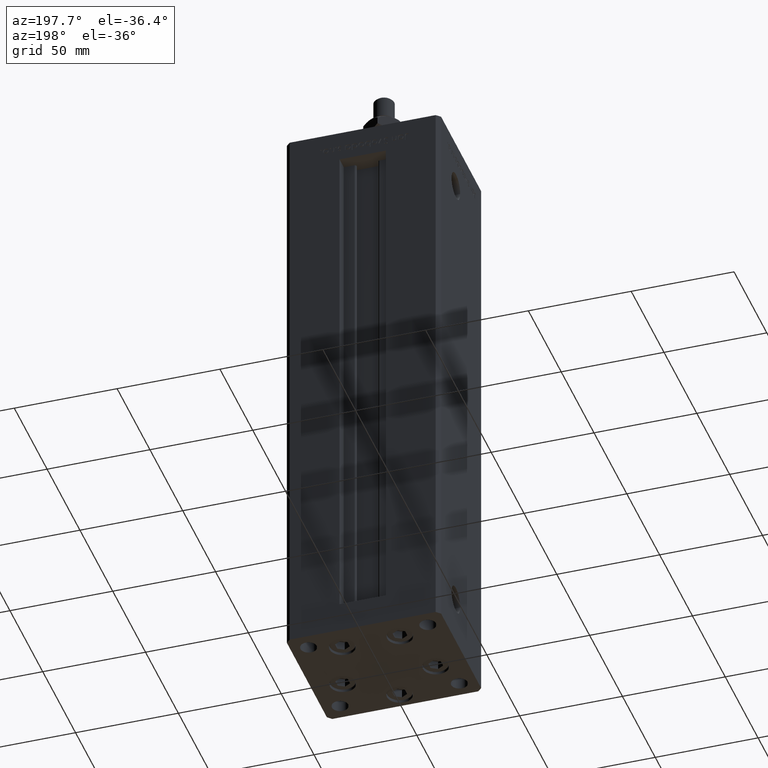
[diagram: clean part render]
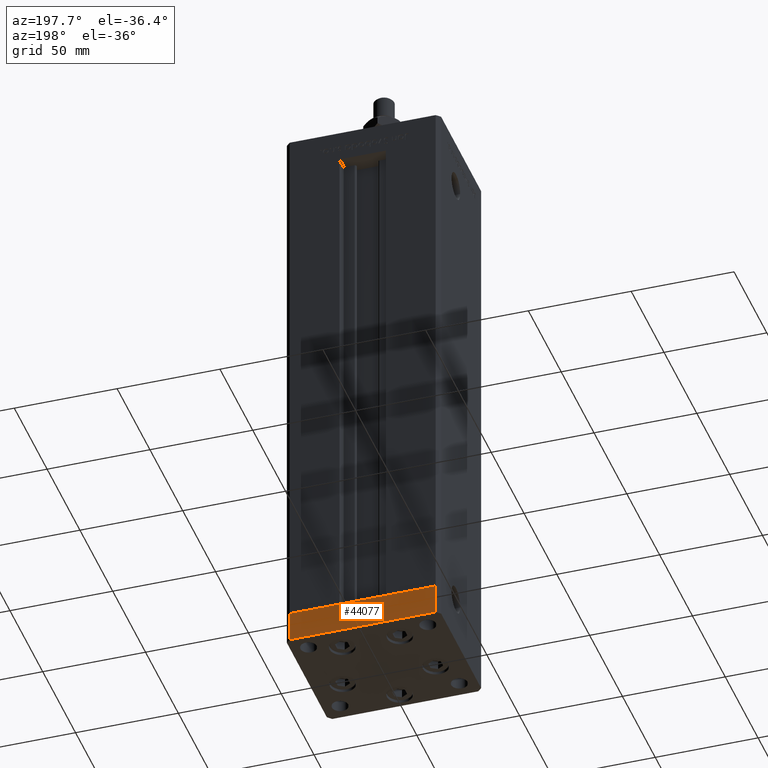
[diagram: same view with one face highlighted and labeled with its STEP entity id]
A machine part, auxiliary view. The second image highlights one B-rep face of the part: STEP entity #44077.
In plain terms, the highlighted planar face has unit normal (0, 1, 0).
Its self-contained STEP definition (entity closure, byte-faithful):
#1068 = VECTOR ( 'NONE', #1666, 1000.000000000000000 ) ;
#1666 = DIRECTION ( 'NONE',  ( 0.000000000000000000, 0.000000000000000000, 1.000000000000000000 ) ) ;
#2116 = CARTESIAN_POINT ( 'NONE',  ( -35.50000000000002842, 32.49999999999999289, 0.000000000000000000 ) ) ;
#5877 = VECTOR ( 'NONE', #32438, 1000.000000000000000 ) ;
#8770 = DIRECTION ( 'NONE',  ( -1.000000000000000000, -1.954618001100629052E-16, 0.000000000000000000 ) ) ;
#14731 = DIRECTION ( 'NONE',  ( -1.000000000000000000, -1.954618001100629052E-16, 0.000000000000000000 ) ) ;
#17048 = VERTEX_POINT ( 'NONE', #46578 ) ;
#18239 = CARTESIAN_POINT ( 'NONE',  ( -35.50000000000002842, 32.49999999999999289, -15.00000000000000000 ) ) ;
#20235 = ORIENTED_EDGE ( 'NONE', *, *, #34404, .T. ) ;
#20716 = CARTESIAN_POINT ( 'NONE',  ( 35.49999999999992184, 32.50000000000000711, -15.00000000000000000 ) ) ;
#21206 = CARTESIAN_POINT ( 'NONE',  ( 35.49999999999992184, 32.50000000000000711, -15.00000000000000000 ) ) ;
#21416 = EDGE_CURVE ( 'NONE', #17048, #25469, #49011, .T. ) ;
#21546 = ORIENTED_EDGE ( 'NONE', *, *, #35078, .F. ) ;
#22232 = VECTOR ( 'NONE', #8770, 1000.000000000000000 ) ;
#23572 = ORIENTED_EDGE ( 'NONE', *, *, #47829, .F. ) ;
#24537 = DIRECTION ( 'NONE',  ( 0.000000000000000000, 0.000000000000000000, 1.000000000000000000 ) ) ;
#25469 = VERTEX_POINT ( 'NONE', #28532 ) ;
#27491 = PLANE ( 'NONE',  #28163 ) ;
#28163 = AXIS2_PLACEMENT_3D ( 'NONE', #38927, #52227, #14731 ) ;
#28532 = CARTESIAN_POINT ( 'NONE',  ( -35.50000000000002842, 32.49999999999999289, -15.00000000000000000 ) ) ;
#29133 = LINE ( 'NONE', #20716, #34838 ) ;
#29415 = CARTESIAN_POINT ( 'NONE',  ( 35.49999999999992184, 32.50000000000000711, 0.000000000000000000 ) ) ;
#32438 = DIRECTION ( 'NONE',  ( -1.000000000000000000, -1.954618001100629052E-16, 0.000000000000000000 ) ) ;
#33902 = EDGE_LOOP ( 'NONE', ( #23572, #21546, #45606, #20235 ) ) ;
#34404 = EDGE_CURVE ( 'NONE', #25469, #50726, #43255, .T. ) ;
#34838 = VECTOR ( 'NONE', #24537, 1000.000000000000000 ) ;
#35078 = EDGE_CURVE ( 'NONE', #17048, #51308, #29133, .T. ) ;
#38927 = CARTESIAN_POINT ( 'NONE',  ( 35.49999999999992184, 32.50000000000000711, -15.00000000000000000 ) ) ;
#43255 = LINE ( 'NONE', #18239, #1068 ) ;
#44077 = ADVANCED_FACE ( 'NONE', ( #47879 ), #27491, .T. ) ;
#45606 = ORIENTED_EDGE ( 'NONE', *, *, #21416, .T. ) ;
#46578 = CARTESIAN_POINT ( 'NONE',  ( 35.49999999999992184, 32.50000000000000711, -15.00000000000000000 ) ) ;
#47101 = CARTESIAN_POINT ( 'NONE',  ( 35.49999999999992184, 32.50000000000000711, 0.000000000000000000 ) ) ;
#47829 = EDGE_CURVE ( 'NONE', #51308, #50726, #53604, .T. ) ;
#47879 = FACE_OUTER_BOUND ( 'NONE', #33902, .T. ) ;
#49011 = LINE ( 'NONE', #21206, #5877 ) ;
#50726 = VERTEX_POINT ( 'NONE', #2116 ) ;
#51308 = VERTEX_POINT ( 'NONE', #47101 ) ;
#52227 = DIRECTION ( 'NONE',  ( -1.954618001100629052E-16, 1.000000000000000000, 0.000000000000000000 ) ) ;
#53604 = LINE ( 'NONE', #29415, #22232 ) ;